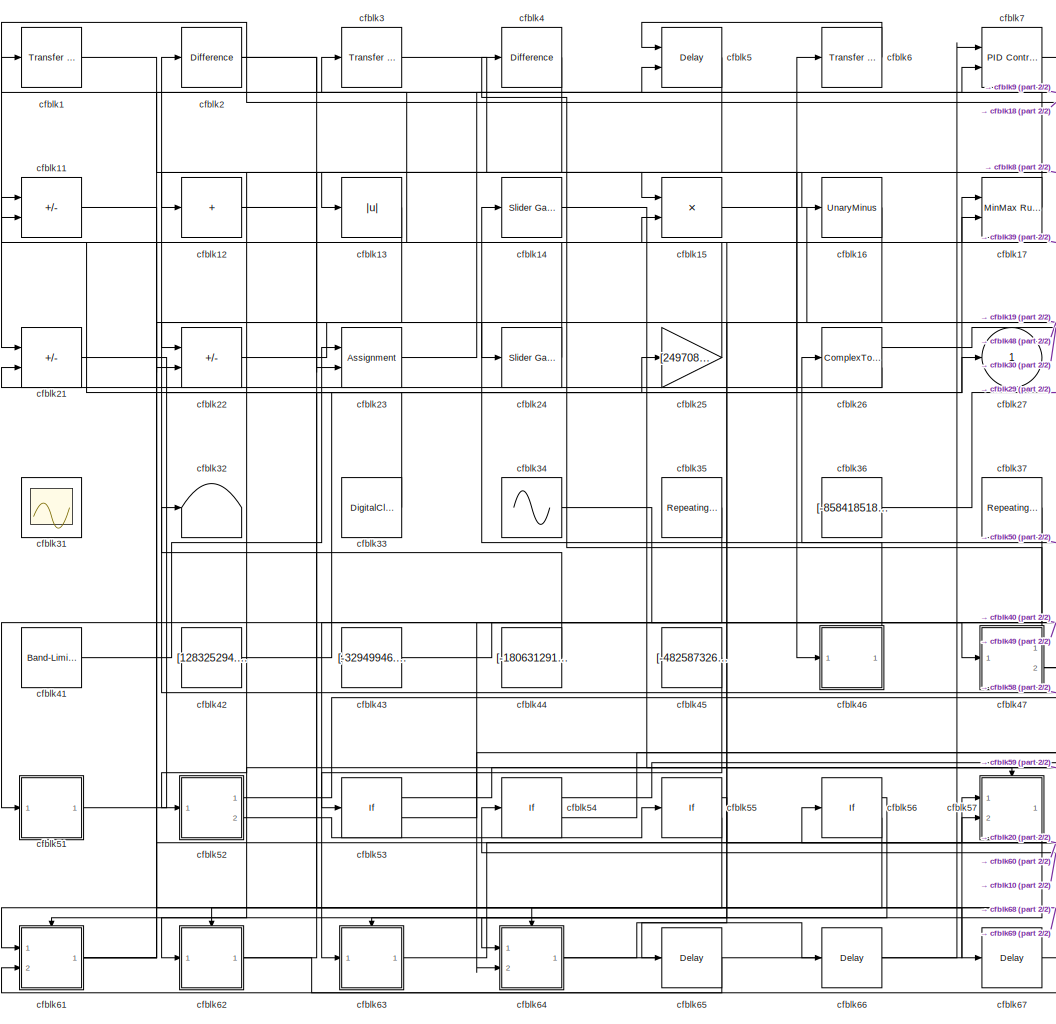
[diagram: root canvas - part 1/2, center side, full height]
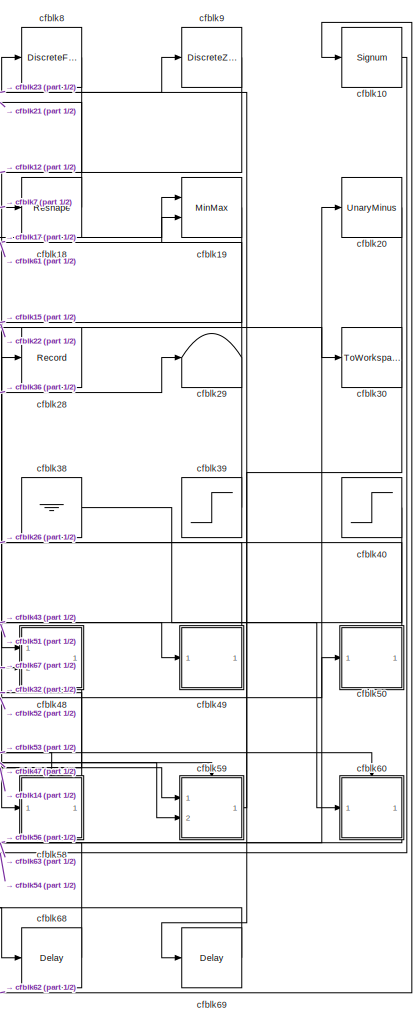
[diagram: root canvas - part 2/2, right side, full height]
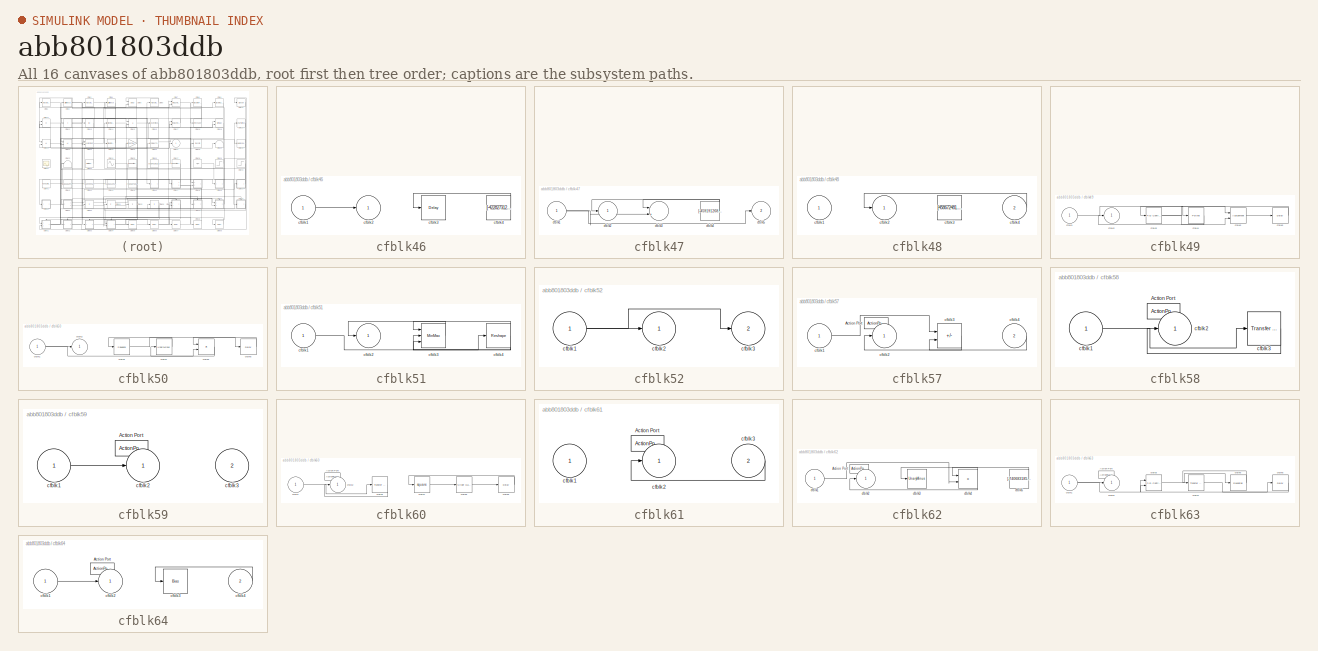
[diagram: thumbnail index - all 16 canvases of the model, root first then tree order]
MODEL slx_abb801803ddb
KIND model
CONFIG AbsTol = auto
CONFIG EnableMultiTasking = off
CONFIG FixedStep = auto
CONFIG MaxStep = auto
CONFIG MinStep = auto
CONFIG RelTol = 1e-3
CONFIG SampleTimeConstraint = Unconstrained
CONFIG SolverName = VariableStepAuto
CONFIG StartTime = 0.0
CONFIG StopTime = 10.0
BLOCK [Reference] cfblk1  REF=simulink/Discrete/Transfer Fcn
First Order
  Ports = [1, 1]
  SourceBlock = simulink/Discrete/Transfer Fcn\nFirst Order
  SourceProductBaseCode = SL
  SourceType = First Order Transfer Fcn
BLOCK [Signum] cfblk10
BLOCK [Sum] cfblk11
  IconShape = rectangular
  Inputs = +-
  Ports = [2, 1]
BLOCK [Sum] cfblk12
  IconShape = rectangular
  Inputs = +
  Ports = [1, 1]
BLOCK [Abs] cfblk13
  SaturateOnIntegerOverflow = off
BLOCK [Reference] cfblk14  REF=simulink/Math
Operations/Slider
Gain
  Ports = [1, 1]
  SourceBlock = simulink/Math\nOperations/Slider\nGain
  SourceProductBaseCode = SL
  SourceType = Slider Gain
BLOCK [Product] cfblk15
  Inputs = **
  Ports = [2, 1]
BLOCK [UnaryMinus] cfblk16
BLOCK [Reference] cfblk17  REF=simulink/Math
Operations/MinMax
Running
Resettable
  Ports = [2, 1]
  SourceBlock = simulink/Math\nOperations/MinMax\nRunning\nResettable
  SourceProductBaseCode = SL
  SourceType = MinMax Running Resettable
BLOCK [Reshape] cfblk18
  Ports = [1, 1]
BLOCK [MinMax] cfblk19
  Inputs = 2
  Ports = [2, 1]
BLOCK [Reference] cfblk2  REF=simulink/Discrete/Difference
  Ports = [1, 1]
  SourceBlock = simulink/Discrete/Difference
  SourceProductBaseCode = SL
  SourceType = Difference
BLOCK [UnaryMinus] cfblk20
BLOCK [Sum] cfblk21
  IconShape = rectangular
  Inputs = +-
  Ports = [2, 1]
BLOCK [Sum] cfblk22
  IconShape = rectangular
  Inputs = +-
  Ports = [2, 1]
BLOCK [Assignment] cfblk23
  DiagnosticForDimensions = Warning
  IndexOptions = Index vector (dialog)
  Indices = 1
  OutputSizes = 1
  Ports = [2, 1]
BLOCK [Reference] cfblk24  REF=simulink/Math
Operations/Slider
Gain
  Ports = [1, 1]
  SourceBlock = simulink/Math\nOperations/Slider\nGain
  SourceProductBaseCode = SL
  SourceType = Slider Gain
BLOCK [Gain] cfblk25
  Gain = [249708222.524312]
BLOCK [ComplexToMagnitudeAngle] cfblk26
  Ports = [1, 2]
BLOCK [Outport] cfblk27
BLOCK [Record] cfblk28
  FileSettingsInternal = {"entries":[{"content":{"excelSettings":{"content":{},"type":"Streamout.ExcelSettings"}},"type":"Streamout.FileSettingStorage","uuid":"fc3e83d0-d56b-4c83-b2a5-80e353ecfa04"}],"packageUris":["http://schema.mathworks.com/mf0/streamout_blocks/R2020a"],"version":"1.0"}
  Ports = [1]
  SignalsInternal = {"entries":[{"content":{"signals":[{"content":{"blockPath":["sampleModel301/cfblk28"],"channel":[],"dimensions":[1],"domain":"sampleModel301/cfblk28","lineColor":"#0072bd","plots":[1],"port":1,"sid":[""],"signalID":12922,"signalName":"cfblk49"},"type":"RecordBlkView.Signal","uuid":"28842435-4abb-4854-9952-0d3e1e0a5988"}]},"type":"RecordBlkView.InputSignals","uuid":"907c0131-cf25-44c8-b84d-6c3f6b91...<+98ch>
  VisualizationBindings = {"sparklinesplugin":{"info":[{"bindingParametersList":[],"subplotID":1}]}}
BLOCK [Terminator] cfblk29
BLOCK [Reference] cfblk3  REF=simulink/Discrete/Transfer Fcn
First Order
  Ports = [1, 1]
  SourceBlock = simulink/Discrete/Transfer Fcn\nFirst Order
  SourceProductBaseCode = SL
  SourceType = First Order Transfer Fcn
BLOCK [ToWorkspace] cfblk30
  FixptAsFi = on
  MaxDataPoints = inf
  Ports = [1]
  SampleTime = -1
  SaveFormat = Timeseries
  VariableName = wbhgvub
BLOCK [Scope] cfblk31
  Floating = on
  NumInputPorts = 1
  Ports = []
BLOCK [Terminator] cfblk32
BLOCK [DigitalClock] cfblk33
BLOCK [Sin] cfblk34
  Amplitude = [15370521.272923]
  Bias = [-395037117.474888]
  Ports = [0, 1]
  SampleTime = 0
BLOCK [Reference] cfblk35  REF=simulink/Sources/Repeating
Sequence
Stair
  Ports = [0, 1]
  SourceBlock = simulink/Sources/Repeating\nSequence\nStair
  SourceProductBaseCode = SL
  SourceType = Repeating Sequence Stair
BLOCK [Constant] cfblk36
  SampleTime = 1
  Value = [-858418518.718590]
BLOCK [Reference] cfblk37  REF=simulink/Sources/Repeating
Sequence
Interpolated
  Ports = [0, 1]
  SourceBlock = simulink/Sources/Repeating\nSequence\nInterpolated
  SourceProductBaseCode = SL
  SourceType = Repeating Sequence Interpolated
BLOCK [Ground] cfblk38
BLOCK [Step] cfblk39
  After = [727866125.826064]
  Before = [69064811.287218]
  SampleTime = 0
  Time = [14.000000]
BLOCK [Reference] cfblk4  REF=simulink/Discrete/Difference
  Ports = [1, 1]
  SourceBlock = simulink/Discrete/Difference
  SourceProductBaseCode = SL
  SourceType = Difference
BLOCK [Step] cfblk40
  After = [-801015617.864337]
  Before = [-690044896.559738]
  SampleTime = 0
  Time = [42.000000]
BLOCK [Reference] cfblk41  REF=simulink/Sources/Band-Limited
White Noise
  Ports = [0, 1]
  SourceBlock = simulink/Sources/Band-Limited\nWhite Noise
  SourceProductBaseCode = SL
  SourceType = Band-Limited White Noise.
BLOCK [Constant] cfblk42
  SampleTime = 1
  Value = [128325294.994329]
BLOCK [Constant] cfblk43
  SampleTime = 1
  Value = [-32949946.747963]
BLOCK [Constant] cfblk44
  SampleTime = 1
  Value = [-180631291.416354]
BLOCK [Constant] cfblk45
  SampleTime = 1
  Value = [-482587326.829832]
BLOCK [SubSystem] cfblk46
  Ports = [1, 1]
  RequestExecContextInheritance = off
BLOCK [Inport] cfblk46/cfblk1
BLOCK [Outport] cfblk46/cfblk2
BLOCK [Delay] cfblk46/cfblk3
  InputPortMap = u0
  Ports = [1, 1]
  SampleTime = 1
BLOCK [Constant] cfblk46/cfblk4
  SampleTime = 1
  Value = [-422827312.262940]
BLOCK [SubSystem] cfblk47
  Ports = [1, 2]
  RequestExecContextInheritance = off
BLOCK [Inport] cfblk47/cfblk1
BLOCK [Outport] cfblk47/cfblk2
BLOCK [Sum] cfblk47/cfblk3
  Inputs = |++
  Ports = [2, 1]
BLOCK [Constant] cfblk47/cfblk4
  SampleTime = 1
  Value = [-459191268.147605]
BLOCK [Outport] cfblk47/cfblk5
  Port = 2
BLOCK [SubSystem] cfblk48
  Ports = [2, 1]
  RequestExecContextInheritance = off
BLOCK [Inport] cfblk48/cfblk1
BLOCK [Outport] cfblk48/cfblk2
BLOCK [Constant] cfblk48/cfblk3
  SampleTime = 1
  Value = [458672481.824373]
BLOCK [Inport] cfblk48/cfblk4
  Port = 2
BLOCK [SubSystem] cfblk49
  Ports = [1, 1]
  RequestExecContextInheritance = off
BLOCK [Inport] cfblk49/cfblk1
BLOCK [Outport] cfblk49/cfblk2
BLOCK [Reference] cfblk49/cfblk3  REF=slpidlib/PID Controller
  Ports = [1, 1]
  SourceBlock = slpidlib/PID Controller
  SourceProductBaseCode = SL
  SourceType = PID 1dof
BLOCK [Polyval] cfblk49/cfblk4
  Coefs = [ +2.081618890e-019, -1.441693666e-014, +4.719686976e-010, -8.536869453e-006, +1.621573104e-001, -8.087801117e+001 ]
BLOCK [Assignment] cfblk49/cfblk5
  DiagnosticForDimensions = Warning
  IndexOptions = Index vector (dialog)
  Indices = 1
  OutputSizes = 1
  Ports = [2, 1]
BLOCK [Delay] cfblk49/cfblk6
  InputPortMap = u0
  Ports = [1, 1]
  SampleTime = 1
BLOCK [Delay] cfblk5
  InputPortMap = u0,e6
  Ports = [2, 1]
  SampleTime = 1
  ShowEnablePort = on
BLOCK [SubSystem] cfblk50
  Ports = [1, 1]
  RequestExecContextInheritance = off
BLOCK [Inport] cfblk50/cfblk1
BLOCK [Outport] cfblk50/cfblk2
BLOCK [Squeeze] cfblk50/cfblk3
BLOCK [UnaryMinus] cfblk50/cfblk4
BLOCK [Product] cfblk50/cfblk5
  Ports = [2, 1]
BLOCK [Delay] cfblk50/cfblk6
  InputPortMap = u0
  Ports = [1, 1]
  SampleTime = 1
BLOCK [SubSystem] cfblk51
  Ports = [1, 1]
  RequestExecContextInheritance = off
BLOCK [Inport] cfblk51/cfblk1
BLOCK [Outport] cfblk51/cfblk2
BLOCK [MinMax] cfblk51/cfblk3
  Inputs = 3
  Ports = [3, 1]
BLOCK [Reshape] cfblk51/cfblk4
  Ports = [1, 1]
BLOCK [SubSystem] cfblk52
  Ports = [1, 2]
  RequestExecContextInheritance = off
BLOCK [Inport] cfblk52/cfblk1
BLOCK [Outport] cfblk52/cfblk2
BLOCK [Outport] cfblk52/cfblk3
  Port = 2
BLOCK [If] cfblk53
  IfExpression = u1 >= 0
  Ports = [1, 2]
  SampleTime = 1
BLOCK [If] cfblk54
  IfExpression = u1 >= 0
  Ports = [1, 2]
  SampleTime = 1
BLOCK [If] cfblk55
  IfExpression = u1 >= 0
  Ports = [1, 2]
  SampleTime = 1
BLOCK [If] cfblk56
  IfExpression = u1 >= 0
  Ports = [1, 2]
  SampleTime = 1
BLOCK [SubSystem] cfblk57
  Ports = [2, 1, 0, 0, 0, 0, 0, 1]
  RequestExecContextInheritance = off
  TreatAsAtomicUnit = on
BLOCK [ActionPort] cfblk57/Action Port
  ActionPortLabel = if(u1 >= 0)
BLOCK [Inport] cfblk57/cfblk1
BLOCK [Outport] cfblk57/cfblk2
BLOCK [Sum] cfblk57/cfblk3
  IconShape = rectangular
  Inputs = -+
  Ports = [2, 1]
BLOCK [Inport] cfblk57/cfblk4
  Port = 2
BLOCK [SubSystem] cfblk58
  Ports = [1, 1, 0, 0, 0, 0, 0, 1]
  RequestExecContextInheritance = off
  TreatAsAtomicUnit = on
BLOCK [ActionPort] cfblk58/Action Port
  ActionPortLabel = else
BLOCK [Inport] cfblk58/cfblk1
BLOCK [Outport] cfblk58/cfblk2
BLOCK [Reference] cfblk58/cfblk3  REF=simulink/Discrete/Transfer Fcn
First Order
  Ports = [1, 1]
  SourceBlock = simulink/Discrete/Transfer Fcn\nFirst Order
  SourceProductBaseCode = SL
  SourceType = First Order Transfer Fcn
BLOCK [SubSystem] cfblk59
  Ports = [2, 1, 0, 0, 0, 0, 0, 1]
  RequestExecContextInheritance = off
  TreatAsAtomicUnit = on
BLOCK [ActionPort] cfblk59/Action Port
  ActionPortLabel = if(u1 >= 0)
BLOCK [Inport] cfblk59/cfblk1
BLOCK [Outport] cfblk59/cfblk2
BLOCK [Inport] cfblk59/cfblk3
  Port = 2
BLOCK [Reference] cfblk6  REF=simulink/Discrete/Transfer Fcn
Lead or Lag
  Ports = [1, 1]
  SourceBlock = simulink/Discrete/Transfer Fcn\nLead or Lag
  SourceProductBaseCode = SL
  SourceType = Lead or Lag Compensator
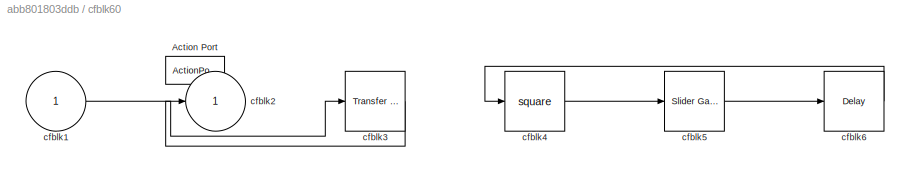
BLOCK [SubSystem] cfblk60
  Ports = [1, 1, 0, 0, 0, 0, 0, 1]
  RequestExecContextInheritance = off
  TreatAsAtomicUnit = on
BLOCK [ActionPort] cfblk60/Action Port
  ActionPortLabel = else
BLOCK [Inport] cfblk60/cfblk1
BLOCK [Outport] cfblk60/cfblk2
BLOCK [Reference] cfblk60/cfblk3  REF=simulink/Discrete/Transfer Fcn
Real Zero
  Ports = [1, 1]
  SourceBlock = simulink/Discrete/Transfer Fcn\nReal Zero
  SourceProductBaseCode = SL
  SourceType = Transfer Fcn Real Zero
BLOCK [Math] cfblk60/cfblk4
  Operator = square
  Ports = [1, 1]
BLOCK [Reference] cfblk60/cfblk5  REF=simulink/Math
Operations/Slider
Gain
  Ports = [1, 1]
  SourceBlock = simulink/Math\nOperations/Slider\nGain
  SourceProductBaseCode = SL
  SourceType = Slider Gain
BLOCK [Delay] cfblk60/cfblk6
  InputPortMap = u0
  Ports = [1, 1]
BLOCK [SubSystem] cfblk61
  Ports = [2, 1, 0, 0, 0, 0, 0, 1]
  RequestExecContextInheritance = off
  TreatAsAtomicUnit = on
BLOCK [ActionPort] cfblk61/Action Port
  ActionPortLabel = if(u1 >= 0)
BLOCK [Inport] cfblk61/cfblk1
BLOCK [Outport] cfblk61/cfblk2
BLOCK [Inport] cfblk61/cfblk3
  Port = 2
BLOCK [SubSystem] cfblk62
  Ports = [1, 1, 0, 0, 0, 0, 0, 1]
  RequestExecContextInheritance = off
  TreatAsAtomicUnit = on
BLOCK [ActionPort] cfblk62/Action Port
  ActionPortLabel = else
BLOCK [Inport] cfblk62/cfblk1
BLOCK [Outport] cfblk62/cfblk2
BLOCK [UnaryMinus] cfblk62/cfblk3
BLOCK [Product] cfblk62/cfblk4
  Inputs = **
  Ports = [2, 1]
BLOCK [Constant] cfblk62/cfblk5
  SampleTime = 1
  Value = [-740683185.591875]
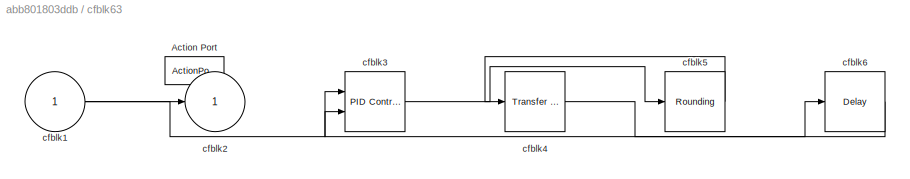
BLOCK [SubSystem] cfblk63
  Ports = [1, 1, 0, 0, 0, 0, 0, 1]
  RequestExecContextInheritance = off
  TreatAsAtomicUnit = on
BLOCK [ActionPort] cfblk63/Action Port
  ActionPortLabel = if(u1 >= 0)
BLOCK [Inport] cfblk63/cfblk1
BLOCK [Outport] cfblk63/cfblk2
BLOCK [Reference] cfblk63/cfblk3  REF=slpidlib/PID Controller (2DOF)
  Ports = [2, 1]
  SourceBlock = slpidlib/PID Controller (2DOF)
  SourceProductBaseCode = SL
  SourceType = PID 2dof
BLOCK [Reference] cfblk63/cfblk4  REF=simulink/Discrete/Transfer Fcn
First Order
  Ports = [1, 1]
  SourceBlock = simulink/Discrete/Transfer Fcn\nFirst Order
  SourceProductBaseCode = SL
  SourceType = First Order Transfer Fcn
BLOCK [Rounding] cfblk63/cfblk5
BLOCK [Delay] cfblk63/cfblk6
  InputPortMap = u0
  Ports = [1, 1]
BLOCK [SubSystem] cfblk64
  Ports = [2, 1, 0, 0, 0, 0, 0, 1]
  RequestExecContextInheritance = off
  TreatAsAtomicUnit = on
BLOCK [ActionPort] cfblk64/Action Port
  ActionPortLabel = else
BLOCK [Inport] cfblk64/cfblk1
BLOCK [Outport] cfblk64/cfblk2
BLOCK [Bias] cfblk64/cfblk3
  Bias = [-949143429.058562]
  SaturateOnIntegerOverflow = off
BLOCK [Inport] cfblk64/cfblk4
  Port = 2
BLOCK [Delay] cfblk65
  InputPortMap = u0
  Ports = [1, 1]
  SampleTime = 1
BLOCK [Delay] cfblk66
  InputPortMap = u0
  Ports = [1, 1]
  SampleTime = 1
BLOCK [Delay] cfblk67
  InputPortMap = u0
  Ports = [1, 1]
  SampleTime = 1
BLOCK [Delay] cfblk68
  InputPortMap = u0
  Ports = [1, 1]
  SampleTime = 1
BLOCK [Delay] cfblk69
  InputPortMap = u0
  Ports = [1, 1]
  SampleTime = 1
BLOCK [Reference] cfblk7  REF=slpidlib/PID Controller (2DOF)
  Ports = [2, 1]
  SourceBlock = slpidlib/PID Controller (2DOF)
  SourceProductBaseCode = SL
  SourceType = PID 2dof
BLOCK [DiscreteFilter] cfblk8
  InputPortMap = u0
  Ports = [1, 1]
  SampleTime = 1
BLOCK [DiscreteZeroPole] cfblk9
  Gain = 1
  Poles = [0 0.5]
LINE cfblk10:1 -> cfblk54:1
LINE cfblk11:1 -> cfblk67:1
NET cfblk12:1 -> cfblk16:1, cfblk68:1
LINE cfblk13:1 -> cfblk22:2
LINE cfblk14:1 -> cfblk59:1
LINE cfblk15:1 -> cfblk48:1
LINE cfblk16:1 -> cfblk65:1
LINE cfblk17:1 -> cfblk1:1
LINE cfblk18:1 -> cfblk21:1
LINE cfblk19:1 -> cfblk22:1
LINE cfblk1:1 -> cfblk15:1
LINE cfblk20:1 -> cfblk69:1
LINE cfblk21:1 -> cfblk27:1
LINE cfblk22:1 -> cfblk24:1
LINE cfblk23:1 -> cfblk9:1
LINE cfblk24:1 -> cfblk11:1
LINE cfblk25:1 -> cfblk3:1
LINE cfblk26:1 -> cfblk30:1
LINE cfblk26:2 -> cfblk21:2
NET cfblk2:1 -> cfblk23:2, cfblk5:2
LINE cfblk33:1 -> cfblk11:2
LINE cfblk34:1 -> cfblk47:1
LINE cfblk35:1 -> cfblk63:1
LINE cfblk36:1 -> cfblk29:1
LINE cfblk37:1 -> cfblk64:2
LINE cfblk38:1 -> cfblk60:1
LINE cfblk39:1 -> cfblk17:1
LINE cfblk3:1 -> cfblk46:1
LINE cfblk40:1 -> cfblk51:1
LINE cfblk41:1 -> cfblk23:1
LINE cfblk42:1 -> cfblk6:1
LINE cfblk43:1 -> cfblk49:1
LINE cfblk44:1 -> cfblk2:1
LINE cfblk45:1 -> cfblk53:1
LINE cfblk46/cfblk1:1 -> cfblk46/cfblk2:1
LINE cfblk46/cfblk4:1 -> cfblk46/cfblk3:1
LINE cfblk46:1 -> cfblk14:1
NET cfblk47/cfblk1:1 -> cfblk47/cfblk3:2, cfblk47/cfblk5:1
NET cfblk47/cfblk4:1 -> cfblk47/cfblk2:1, cfblk47/cfblk3:1
LINE cfblk47:1 -> cfblk4:1
NET cfblk47:2 -> cfblk19:1, cfblk59:2
LINE cfblk48/cfblk4:1 -> cfblk48/cfblk2:1
LINE cfblk48:1 -> cfblk62:1
LINE cfblk49/cfblk1:1 -> cfblk49/cfblk4:1
NET cfblk49/cfblk3:1 -> cfblk49/cfblk5:1, cfblk49/cfblk5:2
LINE cfblk49/cfblk4:1 -> cfblk49/cfblk2:1
LINE cfblk49/cfblk5:1 -> cfblk49/cfblk6:1
LINE cfblk49/cfblk6:1 -> cfblk49/cfblk3:1
LINE cfblk49:1 -> cfblk28:1
LINE cfblk4:1 -> cfblk13:1
NET cfblk50/cfblk1:1 -> cfblk50/cfblk2:1, cfblk50/cfblk5:2
LINE cfblk50/cfblk3:1 -> cfblk50/cfblk6:1
LINE cfblk50/cfblk4:1 -> cfblk50/cfblk3:1
LINE cfblk50/cfblk5:1 -> cfblk50/cfblk4:1
LINE cfblk50/cfblk6:1 -> cfblk50/cfblk5:1
LINE cfblk50:1 -> cfblk26:1
LINE cfblk51/cfblk1:1 -> cfblk51/cfblk4:1
LINE cfblk51/cfblk3:1 -> cfblk51/cfblk2:1
NET cfblk51/cfblk4:1 -> cfblk51/cfblk3:1, cfblk51/cfblk3:2, cfblk51/cfblk3:3
LINE cfblk51:1 -> cfblk17:2
NET cfblk52/cfblk1:1 -> cfblk52/cfblk2:1, cfblk52/cfblk3:1
LINE cfblk52:1 -> cfblk50:1
LINE cfblk52:2 -> cfblk55:1
LINE cfblk53:1 -> cfblk57:ifaction
LINE cfblk53:2 -> cfblk58:ifaction
LINE cfblk54:1 -> cfblk59:ifaction
LINE cfblk54:2 -> cfblk60:ifaction
LINE cfblk55:1 -> cfblk61:ifaction
LINE cfblk55:2 -> cfblk62:ifaction
LINE cfblk56:1 -> cfblk63:ifaction
LINE cfblk56:2 -> cfblk64:ifaction
LINE cfblk57/cfblk1:1 -> cfblk57/cfblk3:1
LINE cfblk57/cfblk3:1 -> cfblk57/cfblk2:1
LINE cfblk57/cfblk4:1 -> cfblk57/cfblk3:2
LINE cfblk57:1 -> cfblk64:1
LINE cfblk58/cfblk1:1 -> cfblk58/cfblk3:1
LINE cfblk58/cfblk3:1 -> cfblk58/cfblk2:1
LINE cfblk58:1 -> cfblk32:1
LINE cfblk59/cfblk1:1 -> cfblk59/cfblk2:1
LINE cfblk59:1 -> cfblk8:1
LINE cfblk5:1 -> cfblk52:1
LINE cfblk60/cfblk1:1 -> cfblk60/cfblk3:1
LINE cfblk60/cfblk3:1 -> cfblk60/cfblk2:1
LINE cfblk60/cfblk4:1 -> cfblk60/cfblk5:1
LINE cfblk60/cfblk5:1 -> cfblk60/cfblk6:1
LINE cfblk60/cfblk6:1 -> cfblk60/cfblk4:1
LINE cfblk60:1 -> cfblk56:1
LINE cfblk61/cfblk3:1 -> cfblk61/cfblk2:1
NET cfblk61:1 -> cfblk19:2, cfblk57:1, cfblk7:2
LINE cfblk62/cfblk1:1 -> cfblk62/cfblk4:2
NET cfblk62/cfblk4:1 -> cfblk62/cfblk2:1, cfblk62/cfblk3:1
LINE cfblk62/cfblk5:1 -> cfblk62/cfblk4:1
NET cfblk62:1 -> cfblk10:1, cfblk25:1
NET cfblk63/cfblk1:1 -> cfblk63/cfblk2:1, cfblk63/cfblk3:1
LINE cfblk63/cfblk3:1 -> cfblk63/cfblk5:1
LINE cfblk63/cfblk4:1 -> cfblk63/cfblk6:1
LINE cfblk63/cfblk5:1 -> cfblk63/cfblk4:1
LINE cfblk63/cfblk6:1 -> cfblk63/cfblk3:2
LINE cfblk63:1 -> cfblk20:1
LINE cfblk64/cfblk1:1 -> cfblk64/cfblk2:1
LINE cfblk64/cfblk4:1 -> cfblk64/cfblk3:1
NET cfblk64:1 -> cfblk66:1, cfblk7:1
LINE cfblk65:1 -> cfblk61:2
LINE cfblk66:1 -> cfblk57:2
LINE cfblk67:1 -> cfblk48:2
LINE cfblk68:1 -> cfblk15:2
LINE cfblk69:1 -> cfblk61:1
LINE cfblk6:1 -> cfblk5:1
LINE cfblk7:1 -> cfblk18:1
LINE cfblk8:1 -> cfblk12:1
LINE cfblk9:1 -> cfblk58:1
note: NET lines group one-source signal fan-out (src -> all destinations, sorted); 1:1 wires keep LINE
